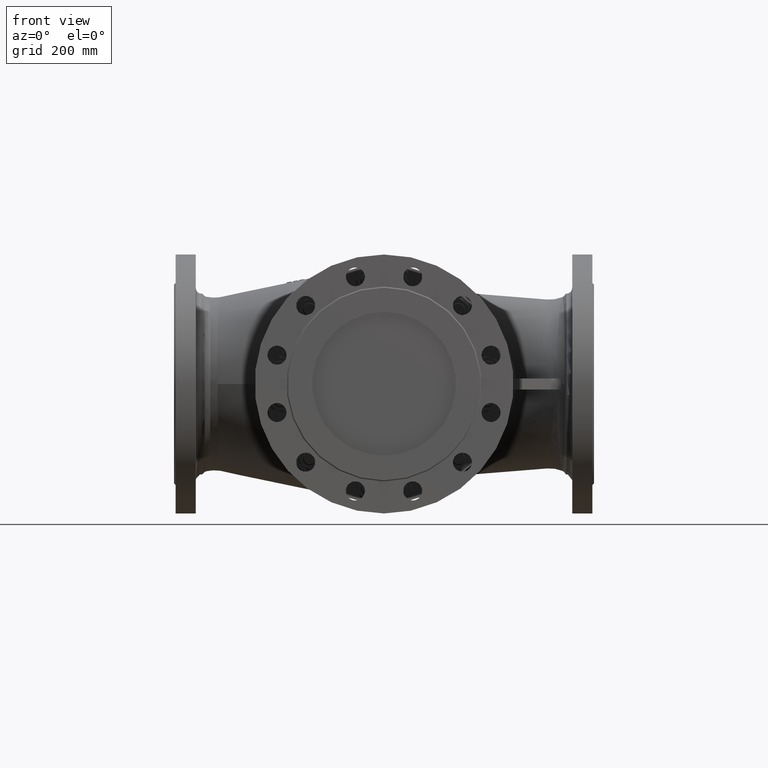
[diagram: clean part render]
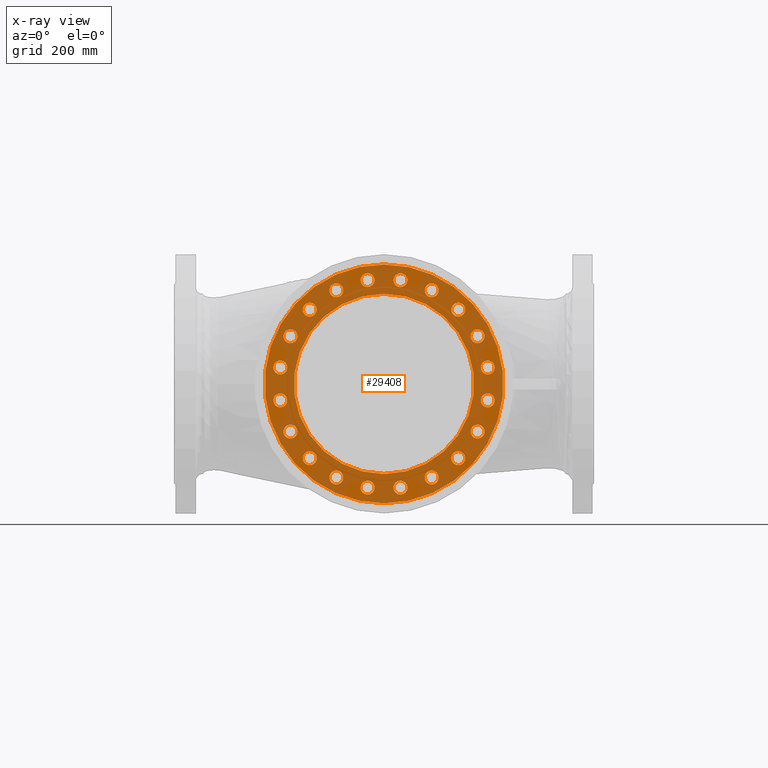
[diagram: x-ray — body ghosted, one internal face saturated and labeled with its STEP entity id]
A machine part, front view, then the same camera in x-ray: the body is ghosted and one INTERNAL B-rep face — a face not visible from any outside direction — is saturated and labeled: STEP entity #29408.
In plain terms, the highlighted planar face has unit normal (-0, -1, -0).
Its self-contained STEP definition (entity closure, byte-faithful):
#397 = EDGE_CURVE ( 'NONE', #156629, #113857, #68360, .T. ) ;
#1043 = DIRECTION ( 'NONE',  ( -2.775557561562891400E-017, -1.000000000000000000, -6.502944296374021100E-017 ) ) ;
#2102 = CARTESIAN_POINT ( 'NONE',  ( -7.757683384568281300E-015, -279.5000000000000000, 6.535622888726495100E-015 ) ) ;
#2305 = DIRECTION ( 'NONE',  ( -2.775557561562891400E-017, -1.000000000000000000, 2.338326614928978400E-017 ) ) ;
#2535 = CARTESIAN_POINT ( 'NONE',  ( -162.6086906643786000, -279.5000000000000000, 82.85326620246469500 ) ) ;
#2753 = DIRECTION ( 'NONE',  ( -2.775557561562891400E-017, -1.000000000000000000, 2.338326614928978400E-017 ) ) ;
#3127 = DIRECTION ( 'NONE',  ( 1.000000000000000000, 0.0000000000000000000, 0.0000000000000000000 ) ) ;
#3755 = DIRECTION ( 'NONE',  ( -1.461890767231333400E-017, 0.0000000000000000000, 1.000000000000000000 ) ) ;
#4243 = DIRECTION ( 'NONE',  ( -1.461890767231333400E-017, 0.0000000000000000000, 1.000000000000000000 ) ) ;
#6985 = CARTESIAN_POINT ( 'NONE',  ( 82.85326620246519300, -279.5000000000000000, 162.6086906643783400 ) ) ;
#7001 = CARTESIAN_POINT ( 'NONE',  ( -1.004700432605255000E-014, -279.5000000000000000, 156.6000000000000200 ) ) ;
#8294 = FACE_BOUND ( 'NONE', #297983, .T. ) ;
#9268 = EDGE_LOOP ( 'NONE', ( #79343, #42528 ) ) ;
#9668 = DIRECTION ( 'NONE',  ( -2.775557561562891400E-017, -1.000000000000000000, 2.338326614928978400E-017 ) ) ;
#10496 = EDGE_CURVE ( 'NONE', #169792, #268583, #316524, .T. ) ;
#11294 = CIRCLE ( 'NONE', #240017, 12.00000000000001100 ) ;
#11310 = CARTESIAN_POINT ( 'NONE',  ( -140.4596657620842000, -279.5000000000000000, -132.7551914990470700 ) ) ;
#12756 = DIRECTION ( 'NONE',  ( -2.775557561562891400E-017, -1.000000000000000000, 2.338326614928978400E-017 ) ) ;
#14125 = VERTEX_POINT ( 'NONE', #135424 ) ;
#15873 = CARTESIAN_POINT ( 'NONE',  ( -162.6086906643756700, -279.5000000000000000, -82.85326620247040800 ) ) ;
#16124 = FACE_BOUND ( 'NONE', #94922, .T. ) ;
#16415 = EDGE_CURVE ( 'NONE', #140521, #97298, #207724, .T. ) ;
#16742 = CARTESIAN_POINT ( 'NONE',  ( -129.0469875665471300, -279.5000000000000000, 129.0469875665429000 ) ) ;
#18573 = CARTESIAN_POINT ( 'NONE',  ( 92.56147013496453700, -279.5000000000000000, 169.6621136918880400 ) ) ;
#18870 = CARTESIAN_POINT ( 'NONE',  ( 82.85326620246519300, -279.5000000000000000, 162.6086906643783400 ) ) ;
#19573 = CARTESIAN_POINT ( 'NONE',  ( -28.54928986984477000, -279.5000000000000000, 180.2531221586123100 ) ) ;
#20358 = VERTEX_POINT ( 'NONE', #246117 ) ;
#22767 = ORIENTED_EDGE ( 'NONE', *, *, #191565, .F. ) ;
#23083 = AXIS2_PLACEMENT_3D ( 'NONE', #246803, #97893, #271749 ) ;
#23933 = FACE_BOUND ( 'NONE', #271853, .T. ) ;
#24568 = DIRECTION ( 'NONE',  ( 1.000000000000000000, 0.0000000000000000000, 0.0000000000000000000 ) ) ;
#26196 = EDGE_CURVE ( 'NONE', #113857, #156629, #133217, .T. ) ;
#27140 = AXIS2_PLACEMENT_3D ( 'NONE', #209268, #60312, #234262 ) ;
#27392 = ORIENTED_EDGE ( 'NONE', *, *, #257186, .F. ) ;
#27539 = DIRECTION ( 'NONE',  ( 1.000000000000000000, 0.0000000000000000000, 0.0000000000000000000 ) ) ;
#28574 = VERTEX_POINT ( 'NONE', #18573 ) ;
#28898 = DIRECTION ( 'NONE',  ( -2.775557561562891400E-017, -1.000000000000000000, 2.338326614928978400E-017 ) ) ;
#29408 = ADVANCED_FACE ( 'NONE', ( #171966, #164155, #39555, #105749, #31708, #288473, #222446, #156296, #90160, #23933, #280638, #214659, #148540, #82314, #16124, #272914, #206806, #140784, #74588, #8294, #265135, #199067 ), #150103, .T. ) ;
#29597 = CARTESIAN_POINT ( 'NONE',  ( -2.936153583948656700E-014, -279.5000000000000000, -207.5000000000000300 ) ) ;
#29845 = VERTEX_POINT ( 'NONE', #104358 ) ;
#31708 = FACE_BOUND ( 'NONE', #153314, .T. ) ;
#31957 = AXIS2_PLACEMENT_3D ( 'NONE', #74049, #247968, #99068 ) ;
#31978 = DIRECTION ( 'NONE',  ( 1.000000000000000000, 0.0000000000000000000, 0.0000000000000000000 ) ) ;
#36863 = VERTEX_POINT ( 'NONE', #141770 ) ;
#38667 = AXIS2_PLACEMENT_3D ( 'NONE', #178000, #28898, #202959 ) ;
#38865 = ORIENTED_EDGE ( 'NONE', *, *, #244096, .F. ) ;
#39469 = EDGE_CURVE ( 'NONE', #84758, #288530, #97750, .T. ) ;
#39555 = FACE_BOUND ( 'NONE', #101783, .T. ) ;
#40234 = AXIS2_PLACEMENT_3D ( 'NONE', #259120, #110236, #284078 ) ;
#40644 = CARTESIAN_POINT ( 'NONE',  ( -117.6343093710006300, -279.5000000000000000, -125.3387836340480400 ) ) ;
#40932 = DIRECTION ( 'NONE',  ( 1.000000000000000000, 0.0000000000000000000, 0.0000000000000000000 ) ) ;
#41794 = DIRECTION ( 'NONE',  ( 1.000000000000000000, 0.0000000000000000000, 0.0000000000000000000 ) ) ;
#42528 = ORIENTED_EDGE ( 'NONE', *, *, #26196, .F. ) ;
#43590 = CARTESIAN_POINT ( 'NONE',  ( -28.54928986984094100, -279.5000000000000000, -180.2531221586129400 ) ) ;
#43916 = DIRECTION ( 'NONE',  ( 1.000000000000000000, 0.0000000000000000000, 0.0000000000000000000 ) ) ;
#44608 = DIRECTION ( 'NONE',  ( 1.000000000000000000, 0.0000000000000000000, 0.0000000000000000000 ) ) ;
#45214 = ORIENTED_EDGE ( 'NONE', *, *, #222500, .F. ) ;
#45692 = CARTESIAN_POINT ( 'NONE',  ( -189.9613260911126800, -279.5000000000000000, 35.60271289734865300 ) ) ;
#45916 = VERTEX_POINT ( 'NONE', #275695 ) ;
#46087 = CARTESIAN_POINT ( 'NONE',  ( 28.54928986983966500, -279.5000000000000000, 180.2531221586131700 ) ) ;
#48987 = EDGE_LOOP ( 'NONE', ( #292650, #53025 ) ) ;
#49841 = EDGE_LOOP ( 'NONE', ( #92448, #168601 ) ) ;
#49842 = AXIS2_PLACEMENT_3D ( 'NONE', #161837, #12756, #186861 ) ;
#52655 = EDGE_LOOP ( 'NONE', ( #265597, #126885 ) ) ;
#53025 = ORIENTED_EDGE ( 'NONE', *, *, #115200, .F. ) ;
#53405 = CIRCLE ( 'NONE', #75999, 11.99999999999999600 ) ;
#53628 = AXIS2_PLACEMENT_3D ( 'NONE', #124303, #298104, #149302 ) ;
#55721 = EDGE_CURVE ( 'NONE', #61120, #193873, #104595, .T. ) ;
#57199 = VERTEX_POINT ( 'NONE', #155610 ) ;
#57790 = VERTEX_POINT ( 'NONE', #84847 ) ;
#58858 = CARTESIAN_POINT ( 'NONE',  ( -169.6621136918883500, -279.5000000000000000, 92.56147013496401100 ) ) ;
#59084 = CIRCLE ( 'NONE', #212531, 11.99999999999999600 ) ;
#60312 = DIRECTION ( 'NONE',  ( -2.775557561562891400E-017, -1.000000000000000000, 2.338326614928978400E-017 ) ) ;
#61120 = VERTEX_POINT ( 'NONE', #269223 ) ;
#61865 = VERTEX_POINT ( 'NONE', #106024 ) ;
#62979 = EDGE_CURVE ( 'NONE', #201974, #204483, #80863, .T. ) ;
#66659 = EDGE_CURVE ( 'NONE', #230853, #28574, #53405, .T. ) ;
#66852 = EDGE_CURVE ( 'NONE', #149313, #283194, #302256, .T. ) ;
#68360 = CIRCLE ( 'NONE', #126092, 156.6000000000000200 ) ;
#68659 = DIRECTION ( 'NONE',  ( 1.000000000000000000, 0.0000000000000000000, 0.0000000000000000000 ) ) ;
#69280 = AXIS2_PLACEMENT_3D ( 'NONE', #46087, #220069, #71146 ) ;
#69731 = DIRECTION ( 'NONE',  ( -2.775557561562891400E-017, -1.000000000000000000, 2.338326614928978400E-017 ) ) ;
#70039 = CARTESIAN_POINT ( 'NONE',  ( -82.85326620246986800, -279.5000000000000000, 162.6086906643759600 ) ) ;
#71136 = EDGE_CURVE ( 'NONE', #158098, #29845, #127084, .T. ) ;
#71146 = DIRECTION ( 'NONE',  ( 1.000000000000000000, 0.0000000000000000000, 0.0000000000000000000 ) ) ;
#71813 = CARTESIAN_POINT ( 'NONE',  ( 191.6658003541542400, -279.5000000000000000, 24.84108593734481500 ) ) ;
#72343 = CIRCLE ( 'NONE', #224544, 12.00000000000000000 ) ;
#73494 = EDGE_CURVE ( 'NONE', #84313, #61865, #196983, .T. ) ;
#74049 = CARTESIAN_POINT ( 'NONE',  ( 28.54928986984347400, -279.5000000000000000, -180.2531221586125100 ) ) ;
#74588 = FACE_BOUND ( 'NONE', #199567, .T. ) ;
#75279 = EDGE_LOOP ( 'NONE', ( #224028, #185159 ) ) ;
#75323 = ORIENTED_EDGE ( 'NONE', *, *, #227421, .F. ) ;
#75999 = AXIS2_PLACEMENT_3D ( 'NONE', #6985, #181070, #31978 ) ;
#76969 = CARTESIAN_POINT ( 'NONE',  ( -180.2531221586122600, -279.5000000000000000, -28.54928986984540300 ) ) ;
#79343 = ORIENTED_EDGE ( 'NONE', *, *, #397, .F. ) ;
#80863 = CIRCLE ( 'NONE', #155068, 12.00000000000001100 ) ;
#81030 = ORIENTED_EDGE ( 'NONE', *, *, #218242, .F. ) ;
#81429 = VERTEX_POINT ( 'NONE', #29597 ) ;
#81469 = CARTESIAN_POINT ( 'NONE',  ( -7.757683384568281300E-015, -279.5000000000000000, 6.535622888726495100E-015 ) ) ;
#81503 = ORIENTED_EDGE ( 'NONE', *, *, #308389, .F. ) ;
#82314 = FACE_BOUND ( 'NONE', #315743, .T. ) ;
#82493 = DIRECTION ( 'NONE',  ( -2.775557561562891400E-017, -1.000000000000000000, 2.338326614928978400E-017 ) ) ;
#82773 = CARTESIAN_POINT ( 'NONE',  ( -28.54928986984094100, -279.5000000000000000, -180.2531221586129400 ) ) ;
#82803 = EDGE_CURVE ( 'NONE', #268583, #169792, #316930, .T. ) ;
#83704 = CIRCLE ( 'NONE', #274394, 12.00000000000001100 ) ;
#83708 = CARTESIAN_POINT ( 'NONE',  ( -73.14506226996482500, -279.5000000000000000, -155.5552676368690200 ) ) ;
#83955 = CIRCLE ( 'NONE', #38667, 12.00000000000001100 ) ;
#84313 = VERTEX_POINT ( 'NONE', #158162 ) ;
#84758 = VERTEX_POINT ( 'NONE', #91874 ) ;
#84847 = CARTESIAN_POINT ( 'NONE',  ( -150.6086906643756400, -279.5000000000000000, -82.85326620247040800 ) ) ;
#85346 = DIRECTION ( 'NONE',  ( -2.775557561562891400E-017, -1.000000000000000000, 2.338326614928978400E-017 ) ) ;
#85487 = CIRCLE ( 'NONE', #233773, 12.00000000000001100 ) ;
#86977 = AXIS2_PLACEMENT_3D ( 'NONE', #253513, #104618, #278449 ) ;
#90160 = FACE_BOUND ( 'NONE', #197666, .T. ) ;
#91278 = AXIS2_PLACEMENT_3D ( 'NONE', #18870, #192940, #43916 ) ;
#91874 = CARTESIAN_POINT ( 'NONE',  ( -92.56147013496340000, -279.5000000000000000, -169.6621136918886400 ) ) ;
#92448 = ORIENTED_EDGE ( 'NONE', *, *, #82803, .F. ) ;
#93548 = CARTESIAN_POINT ( 'NONE',  ( 168.8404439630705600, -279.5000000000000000, 32.25749380234349700 ) ) ;
#94011 = EDGE_LOOP ( 'NONE', ( #101936, #316422 ) ) ;
#94922 = EDGE_LOOP ( 'NONE', ( #221345, #176923 ) ) ;
#94992 = ORIENTED_EDGE ( 'NONE', *, *, #55721, .F. ) ;
#95042 = DIRECTION ( 'NONE',  ( 1.000000000000000000, 0.0000000000000000000, 0.0000000000000000000 ) ) ;
#95156 = EDGE_CURVE ( 'NONE', #230246, #174065, #172240, .T. ) ;
#96524 = ORIENTED_EDGE ( 'NONE', *, *, #66852, .F. ) ;
#97298 = VERTEX_POINT ( 'NONE', #40644 ) ;
#97393 = CIRCLE ( 'NONE', #86977, 12.00000000000001100 ) ;
#97750 = CIRCLE ( 'NONE', #23083, 11.99999999999999600 ) ;
#97893 = DIRECTION ( 'NONE',  ( -2.775557561562891400E-017, -1.000000000000000000, 2.338326614928978400E-017 ) ) ;
#97903 = ORIENTED_EDGE ( 'NONE', *, *, #276473, .F. ) ;
#98206 = DIRECTION ( 'NONE',  ( -2.775557561562891400E-017, -1.000000000000000000, 2.338326614928978400E-017 ) ) ;
#98955 = AXIS2_PLACEMENT_3D ( 'NONE', #129639, #303427, #154628 ) ;
#98981 = EDGE_CURVE ( 'NONE', #150420, #286566, #292479, .T. ) ;
#99068 = DIRECTION ( 'NONE',  ( 1.000000000000000000, 0.0000000000000000000, 0.0000000000000000000 ) ) ;
#99189 = EDGE_CURVE ( 'NONE', #154066, #253337, #276888, .T. ) ;
#99385 = EDGE_LOOP ( 'NONE', ( #22767, #188708 ) ) ;
#99967 = CARTESIAN_POINT ( 'NONE',  ( -129.0469875665424100, -279.5000000000000000, -129.0469875665475600 ) ) ;
#100436 = CARTESIAN_POINT ( 'NONE',  ( -132.7551914990465900, -279.5000000000000000, 140.4596657620847100 ) ) ;
#101215 = ORIENTED_EDGE ( 'NONE', *, *, #290393, .F. ) ;
#101783 = EDGE_LOOP ( 'NONE', ( #319241, #246119 ) ) ;
#101936 = ORIENTED_EDGE ( 'NONE', *, *, #198983, .T. ) ;
#101967 = CARTESIAN_POINT ( 'NONE',  ( -82.85326620246986800, -279.5000000000000000, 162.6086906643759600 ) ) ;
#102000 = DIRECTION ( 'NONE',  ( 1.000000000000000000, 0.0000000000000000000, 0.0000000000000000000 ) ) ;
#103327 = ORIENTED_EDGE ( 'NONE', *, *, #226670, .F. ) ;
#104358 = CARTESIAN_POINT ( 'NONE',  ( -168.8404439630703800, -279.5000000000000000, -32.25749380234466200 ) ) ;
#104595 = CIRCLE ( 'NONE', #40234, 12.00000000000000400 ) ;
#104618 = DIRECTION ( 'NONE',  ( -2.775557561562891400E-017, -1.000000000000000000, 2.338326614928978400E-017 ) ) ;
#105749 = FACE_BOUND ( 'NONE', #48987, .T. ) ;
#106024 = CARTESIAN_POINT ( 'NONE',  ( -82.85326620246996800, -279.5000000000000000, 174.6086906643759600 ) ) ;
#106493 = DIRECTION ( 'NONE',  ( -1.461890767231333400E-017, 0.0000000000000000000, 1.000000000000000000 ) ) ;
#107511 = AXIS2_PLACEMENT_3D ( 'NONE', #123639, #297439, #148644 ) ;
#107803 = DIRECTION ( 'NONE',  ( 1.000000000000000000, 0.0000000000000000000, 0.0000000000000000000 ) ) ;
#107834 = CARTESIAN_POINT ( 'NONE',  ( 155.5552676368683100, -279.5000000000000000, -73.14506226996638800 ) ) ;
#107999 = CIRCLE ( 'NONE', #142656, 11.99999999999999600 ) ;
#108158 = CARTESIAN_POINT ( 'NONE',  ( 162.6086906643762400, -279.5000000000000000, 82.85326620246920000 ) ) ;
#108306 = CARTESIAN_POINT ( 'NONE',  ( -28.54928986984477000, -279.5000000000000000, 180.2531221586123100 ) ) ;
#109333 = CIRCLE ( 'NONE', #27140, 11.99999999999999600 ) ;
#110236 = DIRECTION ( 'NONE',  ( -2.775557561562891400E-017, -1.000000000000000000, 2.338326614928978400E-017 ) ) ;
#112068 = CIRCLE ( 'NONE', #31957, 12.00000000000000400 ) ;
#112522 = AXIS2_PLACEMENT_3D ( 'NONE', #291170, #142411, #316125 ) ;
#113857 = VERTEX_POINT ( 'NONE', #197598 ) ;
#114235 = ORIENTED_EDGE ( 'NONE', *, *, #16415, .F. ) ;
#114536 = ORIENTED_EDGE ( 'NONE', *, *, #120593, .F. ) ;
#115200 = EDGE_CURVE ( 'NONE', #204483, #201974, #140482, .T. ) ;
#120140 = EDGE_CURVE ( 'NONE', #126507, #308645, #237391, .T. ) ;
#120593 = EDGE_CURVE ( 'NONE', #248375, #223911, #97393, .T. ) ;
#121587 = CARTESIAN_POINT ( 'NONE',  ( 125.3387836340467300, -279.5000000000000000, -117.6343093710020000 ) ) ;
#122224 = DIRECTION ( 'NONE',  ( -2.775557561562891400E-017, -1.000000000000000000, 2.338326614928978400E-017 ) ) ;
#122684 = DIRECTION ( 'NONE',  ( -2.775557561562891400E-017, -1.000000000000000000, 2.338326614928978400E-017 ) ) ;
#122870 = DIRECTION ( 'NONE',  ( -2.775557561562891400E-017, -1.000000000000000000, 2.338326614928978400E-017 ) ) ;
#123639 = CARTESIAN_POINT ( 'NONE',  ( -180.2531221586132500, -279.5000000000000000, 28.54928986983906800 ) ) ;
#124303 = CARTESIAN_POINT ( 'NONE',  ( 82.85326620246863200, -279.5000000000000000, -162.6086906643765200 ) ) ;
#124429 = EDGE_CURVE ( 'NONE', #28574, #230853, #276034, .T. ) ;
#124963 = DIRECTION ( 'NONE',  ( 1.000000000000000000, 0.0000000000000000000, 0.0000000000000000000 ) ) ;
#125057 = CARTESIAN_POINT ( 'NONE',  ( 180.2531221586124000, -279.5000000000000000, 28.54928986984415200 ) ) ;
#126092 = AXIS2_PLACEMENT_3D ( 'NONE', #2102, #2753, #4243 ) ;
#126145 = DIRECTION ( 'NONE',  ( -2.775557561562891400E-017, -1.000000000000000000, 2.338326614928978400E-017 ) ) ;
#126158 = VERTEX_POINT ( 'NONE', #107834 ) ;
#126452 = AXIS2_PLACEMENT_3D ( 'NONE', #158746, #9668, #183770 ) ;
#126507 = VERTEX_POINT ( 'NONE', #258850 ) ;
#126587 = EDGE_LOOP ( 'NONE', ( #45214, #293188 ) ) ;
#126885 = ORIENTED_EDGE ( 'NONE', *, *, #261766, .F. ) ;
#126962 = DIRECTION ( 'NONE',  ( 1.000000000000000000, 0.0000000000000000000, 0.0000000000000000000 ) ) ;
#127084 = CIRCLE ( 'NONE', #246961, 12.00000000000001100 ) ;
#127459 = AXIS2_PLACEMENT_3D ( 'NONE', #271064, #122224, #296014 ) ;
#127620 = CARTESIAN_POINT ( 'NONE',  ( 162.6086906643780000, -279.5000000000000000, -82.85326620246574700 ) ) ;
#127983 = AXIS2_PLACEMENT_3D ( 'NONE', #322399, #173676, #24568 ) ;
#129639 = CARTESIAN_POINT ( 'NONE',  ( 180.2531221586130000, -279.5000000000000000, -28.54928986984031500 ) ) ;
#133010 = AXIS2_PLACEMENT_3D ( 'NONE', #19573, #193636, #44608 ) ;
#133184 = DIRECTION ( 'NONE',  ( 1.000000000000000000, 0.0000000000000000000, 0.0000000000000000000 ) ) ;
#133217 = CIRCLE ( 'NONE', #49842, 156.6000000000000200 ) ;
#133329 = DIRECTION ( 'NONE',  ( 1.000000000000000000, 0.0000000000000000000, 0.0000000000000000000 ) ) ;
#134525 = CIRCLE ( 'NONE', #127459, 11.99999999999999600 ) ;
#135424 = CARTESIAN_POINT ( 'NONE',  ( -24.84108593734547900, -279.5000000000000000, 191.6658003541541900 ) ) ;
#137871 = AXIS2_PLACEMENT_3D ( 'NONE', #76969, #250892, #102000 ) ;
#140482 = CIRCLE ( 'NONE', #205566, 12.00000000000001100 ) ;
#140521 = VERTEX_POINT ( 'NONE', #11310 ) ;
#140784 = FACE_BOUND ( 'NONE', #197976, .T. ) ;
#140828 = CARTESIAN_POINT ( 'NONE',  ( -32.25749380234406500, -279.5000000000000000, 168.8404439630704400 ) ) ;
#141770 = CARTESIAN_POINT ( 'NONE',  ( -174.6086906643756700, -279.5000000000000000, -82.85326620247055000 ) ) ;
#142411 = DIRECTION ( 'NONE',  ( -2.775557561562891400E-017, -1.000000000000000000, 2.338326614928978400E-017 ) ) ;
#142656 = AXIS2_PLACEMENT_3D ( 'NONE', #218657, #69731, #243638 ) ;
#142766 = AXIS2_PLACEMENT_3D ( 'NONE', #108158, #281990, #133184 ) ;
#148178 = DIRECTION ( 'NONE',  ( -2.775557561562891400E-017, -1.000000000000000000, 2.338326614928978400E-017 ) ) ;
#148540 = FACE_BOUND ( 'NONE', #49841, .T. ) ;
#148644 = DIRECTION ( 'NONE',  ( 1.000000000000000000, 0.0000000000000000000, 0.0000000000000000000 ) ) ;
#148956 = AXIS2_PLACEMENT_3D ( 'NONE', #82773, #256683, #107803 ) ;
#148976 = CARTESIAN_POINT ( 'NONE',  ( 73.14506226996584800, -279.5000000000000000, 155.5552676368686200 ) ) ;
#149302 = DIRECTION ( 'NONE',  ( 1.000000000000000000, 0.0000000000000000000, 0.0000000000000000000 ) ) ;
#149313 = VERTEX_POINT ( 'NONE', #223660 ) ;
#150062 = DIRECTION ( 'NONE',  ( 1.000000000000000000, 0.0000000000000000000, 0.0000000000000000000 ) ) ;
#150103 = PLANE ( 'NONE',  #310194 ) ;
#150420 = VERTEX_POINT ( 'NONE', #283160 ) ;
#151374 = CARTESIAN_POINT ( 'NONE',  ( 129.0469875665461100, -279.5000000000000000, -129.0469875665438300 ) ) ;
#151559 = EDGE_CURVE ( 'NONE', #191145, #57199, #134525, .T. ) ;
#152207 = DIRECTION ( 'NONE',  ( -2.775557561562891400E-017, -1.000000000000000000, 2.338326614928978400E-017 ) ) ;
#152639 = DIRECTION ( 'NONE',  ( 1.000000000000000000, 0.0000000000000000000, 0.0000000000000000000 ) ) ;
#152836 = DIRECTION ( 'NONE',  ( -2.775557561562891400E-017, -1.000000000000000000, 2.338326614928978400E-017 ) ) ;
#153314 = EDGE_LOOP ( 'NONE', ( #318869, #101215 ) ) ;
#154066 = VERTEX_POINT ( 'NONE', #236772 ) ;
#154628 = DIRECTION ( 'NONE',  ( 1.000000000000000000, 0.0000000000000000000, 0.0000000000000000000 ) ) ;
#155036 = CARTESIAN_POINT ( 'NONE',  ( -170.5449182261138200, -279.5000000000000000, 21.49586684232948000 ) ) ;
#155068 = AXIS2_PLACEMENT_3D ( 'NONE', #247106, #98206, #272052 ) ;
#155610 = CARTESIAN_POINT ( 'NONE',  ( 35.60271289734928500, -279.5000000000000000, 189.9613260911125700 ) ) ;
#156296 = FACE_BOUND ( 'NONE', #99385, .T. ) ;
#156629 = VERTEX_POINT ( 'NONE', #7001 ) ;
#158098 = VERTEX_POINT ( 'NONE', #175527 ) ;
#158162 = CARTESIAN_POINT ( 'NONE',  ( -82.85326620246978300, -279.5000000000000000, 150.6086906643759300 ) ) ;
#158746 = CARTESIAN_POINT ( 'NONE',  ( -162.6086906643756700, -279.5000000000000000, -82.85326620247040800 ) ) ;
#159647 = CIRCLE ( 'NONE', #196522, 11.99999999999999600 ) ;
#159690 = AXIS2_PLACEMENT_3D ( 'NONE', #271727, #122870, #296671 ) ;
#159885 = AXIS2_PLACEMENT_3D ( 'NONE', #99967, #273835, #124963 ) ;
#160621 = EDGE_LOOP ( 'NONE', ( #213013, #247705 ) ) ;
#161119 = EDGE_CURVE ( 'NONE', #45916, #228216, #159647, .T. ) ;
#161837 = CARTESIAN_POINT ( 'NONE',  ( -7.757683384568281300E-015, -279.5000000000000000, 6.535622888726495100E-015 ) ) ;
#164155 = FACE_BOUND ( 'NONE', #202555, .T. ) ;
#165137 = CARTESIAN_POINT ( 'NONE',  ( 169.6621136918877000, -279.5000000000000000, -92.56147013496510600 ) ) ;
#165200 = AXIS2_PLACEMENT_3D ( 'NONE', #300990, #152207, #3127 ) ;
#165264 = EDGE_CURVE ( 'NONE', #81429, #233041, #256592, .T. ) ;
#166134 = CARTESIAN_POINT ( 'NONE',  ( 140.4596657620851900, -279.5000000000000000, 132.7551914990459900 ) ) ;
#168601 = ORIENTED_EDGE ( 'NONE', *, *, #10496, .F. ) ;
#169022 = CIRCLE ( 'NONE', #133010, 12.00000000000000000 ) ;
#169792 = VERTEX_POINT ( 'NONE', #71813 ) ;
#171966 = FACE_BOUND ( 'NONE', #75279, .T. ) ;
#172240 = CIRCLE ( 'NONE', #127983, 12.00000000000001100 ) ;
#172711 = CARTESIAN_POINT ( 'NONE',  ( -1.079110672657330000E-014, -279.5000000000000000, 207.5000000000000900 ) ) ;
#173327 = CIRCLE ( 'NONE', #159690, 11.99999999999999600 ) ;
#173676 = DIRECTION ( 'NONE',  ( -2.775557561562891400E-017, -1.000000000000000000, 2.338326614928978400E-017 ) ) ;
#173847 = EDGE_CURVE ( 'NONE', #174065, #230246, #213326, .T. ) ;
#174065 = VERTEX_POINT ( 'NONE', #155036 ) ;
#175153 = DIRECTION ( 'NONE',  ( -1.461890767231333100E-017, -6.502944296374021100E-017, 1.000000000000000000 ) ) ;
#175527 = CARTESIAN_POINT ( 'NONE',  ( -191.6658003541541300, -279.5000000000000000, -24.84108593734614300 ) ) ;
#175685 = CIRCLE ( 'NONE', #137871, 12.00000000000001100 ) ;
#176422 = DIRECTION ( 'NONE',  ( 1.000000000000000000, 0.0000000000000000000, 0.0000000000000000000 ) ) ;
#176654 = DIRECTION ( 'NONE',  ( -2.775557561562891400E-017, -1.000000000000000000, 2.338326614928978400E-017 ) ) ;
#176923 = ORIENTED_EDGE ( 'NONE', *, *, #95156, .F. ) ;
#178000 = CARTESIAN_POINT ( 'NONE',  ( 180.2531221586130000, -279.5000000000000000, -28.54928986984031500 ) ) ;
#181070 = DIRECTION ( 'NONE',  ( -2.775557561562891400E-017, -1.000000000000000000, 2.338326614928978400E-017 ) ) ;
#181532 = CIRCLE ( 'NONE', #203604, 11.99999999999999600 ) ;
#183770 = DIRECTION ( 'NONE',  ( 1.000000000000000000, 0.0000000000000000000, 0.0000000000000000000 ) ) ;
#184017 = CARTESIAN_POINT ( 'NONE',  ( 21.49586684233004200, -279.5000000000000000, 170.5449182261137700 ) ) ;
#184802 = CARTESIAN_POINT ( 'NONE',  ( 150.6086906643762400, -279.5000000000000000, 82.85326620246915800 ) ) ;
#185159 = ORIENTED_EDGE ( 'NONE', *, *, #124429, .F. ) ;
#185248 = EDGE_CURVE ( 'NONE', #36863, #57790, #294332, .T. ) ;
#186834 = EDGE_CURVE ( 'NONE', #288530, #84758, #181532, .T. ) ;
#186861 = DIRECTION ( 'NONE',  ( -1.461890767231333400E-017, 0.0000000000000000000, 1.000000000000000000 ) ) ;
#187589 = CIRCLE ( 'NONE', #69280, 11.99999999999999600 ) ;
#188433 = CIRCLE ( 'NONE', #276804, 12.00000000000000000 ) ;
#188556 = AXIS2_PLACEMENT_3D ( 'NONE', #301617, #152836, #3755 ) ;
#188708 = ORIENTED_EDGE ( 'NONE', *, *, #99189, .F. ) ;
#189979 = DIRECTION ( 'NONE',  ( -2.775557561562891400E-017, -1.000000000000000000, 2.338326614928978400E-017 ) ) ;
#190823 = DIRECTION ( 'NONE',  ( -2.775557561562891400E-017, -1.000000000000000000, 2.338326614928978400E-017 ) ) ;
#191145 = VERTEX_POINT ( 'NONE', #184017 ) ;
#191415 = EDGE_LOOP ( 'NONE', ( #97903, #312374 ) ) ;
#191565 = EDGE_CURVE ( 'NONE', #253337, #154066, #72343, .T. ) ;
#192940 = DIRECTION ( 'NONE',  ( -2.775557561562891400E-017, -1.000000000000000000, 2.338326614928978400E-017 ) ) ;
#193636 = DIRECTION ( 'NONE',  ( -2.775557561562891400E-017, -1.000000000000000000, 2.338326614928978400E-017 ) ) ;
#193873 = VERTEX_POINT ( 'NONE', #283495 ) ;
#195012 = ORIENTED_EDGE ( 'NONE', *, *, #185248, .F. ) ;
#195685 = CARTESIAN_POINT ( 'NONE',  ( -21.49586684233125000, -279.5000000000000000, -170.5449182261135900 ) ) ;
#196522 = AXIS2_PLACEMENT_3D ( 'NONE', #16742, #190823, #41794 ) ;
#196911 = CARTESIAN_POINT ( 'NONE',  ( 140.4999999999999700, -279.5000000000000000, 1.043528126272235600E-014 ) ) ;
#196983 = CIRCLE ( 'NONE', #312644, 11.99999999999999600 ) ;
#197598 = CARTESIAN_POINT ( 'NONE',  ( -2.457694237869249400E-014, -279.5000000000000000, -156.5999999999999900 ) ) ;
#197666 = EDGE_LOOP ( 'NONE', ( #94992, #237580 ) ) ;
#197976 = EDGE_LOOP ( 'NONE', ( #114536, #311543 ) ) ;
#198983 = EDGE_CURVE ( 'NONE', #233041, #81429, #231399, .T. ) ;
#199067 = FACE_OUTER_BOUND ( 'NONE', #94011, .T. ) ;
#199567 = EDGE_LOOP ( 'NONE', ( #103327, #96524 ) ) ;
#201783 = CARTESIAN_POINT ( 'NONE',  ( 117.6343093710015400, -279.5000000000000000, 125.3387836340471600 ) ) ;
#201974 = VERTEX_POINT ( 'NONE', #121587 ) ;
#202555 = EDGE_LOOP ( 'NONE', ( #81503, #195012 ) ) ;
#202825 = EDGE_CURVE ( 'NONE', #14125, #273784, #188433, .T. ) ;
#202959 = DIRECTION ( 'NONE',  ( 1.000000000000000000, 0.0000000000000000000, 0.0000000000000000000 ) ) ;
#203085 = CIRCLE ( 'NONE', #250196, 12.00000000000001100 ) ;
#203604 = AXIS2_PLACEMENT_3D ( 'NONE', #271537, #122684, #296485 ) ;
#203772 = EDGE_LOOP ( 'NONE', ( #38865, #114235 ) ) ;
#204483 = VERTEX_POINT ( 'NONE', #291813 ) ;
#205566 = AXIS2_PLACEMENT_3D ( 'NONE', #151374, #2305, #176422 ) ;
#206806 = FACE_BOUND ( 'NONE', #160621, .T. ) ;
#207724 = CIRCLE ( 'NONE', #159885, 11.99999999999999600 ) ;
#208741 = AXIS2_PLACEMENT_3D ( 'NONE', #296979, #148178, #321956 ) ;
#208981 = CARTESIAN_POINT ( 'NONE',  ( 170.5449182261136200, -279.5000000000000000, -21.49586684233066000 ) ) ;
#209268 = CARTESIAN_POINT ( 'NONE',  ( 82.85326620246863200, -279.5000000000000000, -162.6086906643765200 ) ) ;
#212531 = AXIS2_PLACEMENT_3D ( 'NONE', #101967, #275817, #126962 ) ;
#213013 = ORIENTED_EDGE ( 'NONE', *, *, #120140, .F. ) ;
#213326 = CIRCLE ( 'NONE', #107511, 12.00000000000001100 ) ;
#214659 = FACE_BOUND ( 'NONE', #214716, .T. ) ;
#214716 = EDGE_LOOP ( 'NONE', ( #27392, #285105 ) ) ;
#217604 = DIRECTION ( 'NONE',  ( -2.775557561562891400E-017, -1.000000000000000000, 2.338326614928978400E-017 ) ) ;
#218242 = EDGE_CURVE ( 'NONE', #126158, #270312, #203085, .T. ) ;
#218657 = CARTESIAN_POINT ( 'NONE',  ( -129.0469875665424100, -279.5000000000000000, -129.0469875665475600 ) ) ;
#219456 = EDGE_CURVE ( 'NONE', #20358, #298567, #245811, .T. ) ;
#220069 = DIRECTION ( 'NONE',  ( -2.775557561562891400E-017, -1.000000000000000000, 2.338326614928978400E-017 ) ) ;
#221345 = ORIENTED_EDGE ( 'NONE', *, *, #173847, .F. ) ;
#222446 = FACE_BOUND ( 'NONE', #203772, .T. ) ;
#222500 = EDGE_CURVE ( 'NONE', #29845, #158098, #175685, .T. ) ;
#223660 = CARTESIAN_POINT ( 'NONE',  ( 174.6086906643762700, -279.5000000000000000, 82.85326620246924300 ) ) ;
#223911 = VERTEX_POINT ( 'NONE', #166134 ) ;
#224028 = ORIENTED_EDGE ( 'NONE', *, *, #66659, .F. ) ;
#224544 = AXIS2_PLACEMENT_3D ( 'NONE', #43590, #217604, #68659 ) ;
#226670 = EDGE_CURVE ( 'NONE', #283194, #149313, #280310, .T. ) ;
#227421 = EDGE_CURVE ( 'NONE', #57199, #191145, #187589, .T. ) ;
#228216 = VERTEX_POINT ( 'NONE', #100436 ) ;
#230246 = VERTEX_POINT ( 'NONE', #45692 ) ;
#230853 = VERTEX_POINT ( 'NONE', #148976 ) ;
#231399 = CIRCLE ( 'NONE', #322488, 207.5000000000000900 ) ;
#231443 = CARTESIAN_POINT ( 'NONE',  ( -180.2531221586122600, -279.5000000000000000, -28.54928986984540300 ) ) ;
#233041 = VERTEX_POINT ( 'NONE', #172711 ) ;
#233773 = AXIS2_PLACEMENT_3D ( 'NONE', #234282, #85346, #259238 ) ;
#234262 = DIRECTION ( 'NONE',  ( 1.000000000000000000, 0.0000000000000000000, 0.0000000000000000000 ) ) ;
#234282 = CARTESIAN_POINT ( 'NONE',  ( -162.6086906643786000, -279.5000000000000000, 82.85326620246469500 ) ) ;
#235031 = ORIENTED_EDGE ( 'NONE', *, *, #151559, .F. ) ;
#236772 = CARTESIAN_POINT ( 'NONE',  ( -35.60271289735063500, -279.5000000000000000, -189.9613260911123100 ) ) ;
#237391 = CIRCLE ( 'NONE', #53628, 11.99999999999999600 ) ;
#237580 = ORIENTED_EDGE ( 'NONE', *, *, #241088, .F. ) ;
#240017 = AXIS2_PLACEMENT_3D ( 'NONE', #15873, #189979, #40932 ) ;
#241088 = EDGE_CURVE ( 'NONE', #193873, #61120, #112068, .T. ) ;
#243638 = DIRECTION ( 'NONE',  ( 1.000000000000000000, 0.0000000000000000000, 0.0000000000000000000 ) ) ;
#243952 = DIRECTION ( 'NONE',  ( -2.775557561562891400E-017, -1.000000000000000000, 2.338326614928978400E-017 ) ) ;
#244096 = EDGE_CURVE ( 'NONE', #97298, #140521, #107999, .T. ) ;
#245414 = CARTESIAN_POINT ( 'NONE',  ( 82.85326620246863200, -279.5000000000000000, -174.6086906643765200 ) ) ;
#245811 = CIRCLE ( 'NONE', #300094, 12.00000000000001100 ) ;
#246117 = CARTESIAN_POINT ( 'NONE',  ( -155.5552676368688500, -279.5000000000000000, 73.14506226996537900 ) ) ;
#246119 = ORIENTED_EDGE ( 'NONE', *, *, #310422, .F. ) ;
#246803 = CARTESIAN_POINT ( 'NONE',  ( -82.85326620246411300, -279.5000000000000000, -162.6086906643788300 ) ) ;
#246961 = AXIS2_PLACEMENT_3D ( 'NONE', #231443, #82493, #256403 ) ;
#247106 = CARTESIAN_POINT ( 'NONE',  ( 129.0469875665461100, -279.5000000000000000, -129.0469875665438300 ) ) ;
#247705 = ORIENTED_EDGE ( 'NONE', *, *, #295685, .F. ) ;
#247968 = DIRECTION ( 'NONE',  ( -2.775557561562891400E-017, -1.000000000000000000, 2.338326614928978400E-017 ) ) ;
#248375 = VERTEX_POINT ( 'NONE', #201783 ) ;
#250196 = AXIS2_PLACEMENT_3D ( 'NONE', #127620, #301418, #152639 ) ;
#250892 = DIRECTION ( 'NONE',  ( -2.775557561562891400E-017, -1.000000000000000000, 2.338326614928978400E-017 ) ) ;
#253337 = VERTEX_POINT ( 'NONE', #195685 ) ;
#253513 = CARTESIAN_POINT ( 'NONE',  ( 129.0469875665433800, -279.5000000000000000, 129.0469875665465600 ) ) ;
#253754 = ORIENTED_EDGE ( 'NONE', *, *, #39469, .F. ) ;
#254245 = ORIENTED_EDGE ( 'NONE', *, *, #186834, .F. ) ;
#255388 = DIRECTION ( 'NONE',  ( -2.775557561562891400E-017, -1.000000000000000000, 2.338326614928978400E-017 ) ) ;
#256403 = DIRECTION ( 'NONE',  ( 1.000000000000000000, 0.0000000000000000000, 0.0000000000000000000 ) ) ;
#256592 = CIRCLE ( 'NONE', #188556, 207.5000000000000900 ) ;
#256683 = DIRECTION ( 'NONE',  ( -2.775557561562891400E-017, -1.000000000000000000, 2.338326614928978400E-017 ) ) ;
#257186 = EDGE_CURVE ( 'NONE', #286566, #150420, #83955, .T. ) ;
#258850 = CARTESIAN_POINT ( 'NONE',  ( 82.85326620246863200, -279.5000000000000000, -150.6086906643765200 ) ) ;
#259120 = CARTESIAN_POINT ( 'NONE',  ( 28.54928986984347400, -279.5000000000000000, -180.2531221586125100 ) ) ;
#259238 = DIRECTION ( 'NONE',  ( 1.000000000000000000, 0.0000000000000000000, 0.0000000000000000000 ) ) ;
#261259 = ORIENTED_EDGE ( 'NONE', *, *, #289901, .F. ) ;
#261766 = EDGE_CURVE ( 'NONE', #228216, #45916, #173327, .T. ) ;
#265135 = FACE_BOUND ( 'NONE', #9268, .T. ) ;
#265305 = CIRCLE ( 'NONE', #112522, 12.00000000000001100 ) ;
#265597 = ORIENTED_EDGE ( 'NONE', *, *, #161119, .F. ) ;
#267940 = AXIS2_PLACEMENT_3D ( 'NONE', #125057, #298869, #150062 ) ;
#268583 = VERTEX_POINT ( 'NONE', #93548 ) ;
#268678 = EDGE_CURVE ( 'NONE', #223911, #248375, #83704, .T. ) ;
#269223 = CARTESIAN_POINT ( 'NONE',  ( 32.25749380234285000, -279.5000000000000000, -168.8404439630706700 ) ) ;
#270312 = VERTEX_POINT ( 'NONE', #165137 ) ;
#271064 = CARTESIAN_POINT ( 'NONE',  ( 28.54928986983966500, -279.5000000000000000, 180.2531221586131700 ) ) ;
#271537 = CARTESIAN_POINT ( 'NONE',  ( -82.85326620246411300, -279.5000000000000000, -162.6086906643788300 ) ) ;
#271727 = CARTESIAN_POINT ( 'NONE',  ( -129.0469875665471300, -279.5000000000000000, 129.0469875665429000 ) ) ;
#271749 = DIRECTION ( 'NONE',  ( 1.000000000000000000, 0.0000000000000000000, 0.0000000000000000000 ) ) ;
#271853 = EDGE_LOOP ( 'NONE', ( #81030, #261259 ) ) ;
#272052 = DIRECTION ( 'NONE',  ( 1.000000000000000000, 0.0000000000000000000, 0.0000000000000000000 ) ) ;
#272914 = FACE_BOUND ( 'NONE', #191415, .T. ) ;
#273784 = VERTEX_POINT ( 'NONE', #140828 ) ;
#273835 = DIRECTION ( 'NONE',  ( -2.775557561562891400E-017, -1.000000000000000000, 2.338326614928978400E-017 ) ) ;
#274394 = AXIS2_PLACEMENT_3D ( 'NONE', #275010, #126145, #299949 ) ;
#275010 = CARTESIAN_POINT ( 'NONE',  ( 129.0469875665433800, -279.5000000000000000, 129.0469875665465600 ) ) ;
#275695 = CARTESIAN_POINT ( 'NONE',  ( -125.3387836340476600, -279.5000000000000000, 117.6343093710010800 ) ) ;
#275817 = DIRECTION ( 'NONE',  ( -2.775557561562891400E-017, -1.000000000000000000, 2.338326614928978400E-017 ) ) ;
#276034 = CIRCLE ( 'NONE', #91278, 11.99999999999999600 ) ;
#276473 = EDGE_CURVE ( 'NONE', #273784, #14125, #169022, .T. ) ;
#276804 = AXIS2_PLACEMENT_3D ( 'NONE', #108306, #282137, #133329 ) ;
#276888 = CIRCLE ( 'NONE', #148956, 12.00000000000000000 ) ;
#278449 = DIRECTION ( 'NONE',  ( 1.000000000000000000, 0.0000000000000000000, 0.0000000000000000000 ) ) ;
#280310 = CIRCLE ( 'NONE', #208741, 12.00000000000001100 ) ;
#280638 = FACE_BOUND ( 'NONE', #126587, .T. ) ;
#281990 = DIRECTION ( 'NONE',  ( -2.775557561562891400E-017, -1.000000000000000000, 2.338326614928978400E-017 ) ) ;
#282137 = DIRECTION ( 'NONE',  ( -2.775557561562891400E-017, -1.000000000000000000, 2.338326614928978400E-017 ) ) ;
#283160 = CARTESIAN_POINT ( 'NONE',  ( 189.9613260911123700, -279.5000000000000000, -35.60271289734997400 ) ) ;
#283194 = VERTEX_POINT ( 'NONE', #184802 ) ;
#283495 = CARTESIAN_POINT ( 'NONE',  ( 24.84108593734409700, -279.5000000000000000, -191.6658003541543300 ) ) ;
#284078 = DIRECTION ( 'NONE',  ( 1.000000000000000000, 0.0000000000000000000, 0.0000000000000000000 ) ) ;
#285105 = ORIENTED_EDGE ( 'NONE', *, *, #98981, .F. ) ;
#286566 = VERTEX_POINT ( 'NONE', #208981 ) ;
#288473 = FACE_BOUND ( 'NONE', #52655, .T. ) ;
#288530 = VERTEX_POINT ( 'NONE', #83708 ) ;
#289901 = EDGE_CURVE ( 'NONE', #270312, #126158, #265305, .T. ) ;
#290393 = EDGE_CURVE ( 'NONE', #61865, #84313, #59084, .T. ) ;
#291170 = CARTESIAN_POINT ( 'NONE',  ( 162.6086906643780000, -279.5000000000000000, -82.85326620246574700 ) ) ;
#291813 = CARTESIAN_POINT ( 'NONE',  ( 132.7551914990454800, -279.5000000000000000, -140.4596657620856800 ) ) ;
#292479 = CIRCLE ( 'NONE', #98955, 12.00000000000001100 ) ;
#292650 = ORIENTED_EDGE ( 'NONE', *, *, #62979, .F. ) ;
#293188 = ORIENTED_EDGE ( 'NONE', *, *, #71136, .F. ) ;
#294332 = CIRCLE ( 'NONE', #126452, 12.00000000000001100 ) ;
#295685 = EDGE_CURVE ( 'NONE', #308645, #126507, #109333, .T. ) ;
#296014 = DIRECTION ( 'NONE',  ( 1.000000000000000000, 0.0000000000000000000, 0.0000000000000000000 ) ) ;
#296485 = DIRECTION ( 'NONE',  ( 1.000000000000000000, 0.0000000000000000000, 0.0000000000000000000 ) ) ;
#296671 = DIRECTION ( 'NONE',  ( 1.000000000000000000, 0.0000000000000000000, 0.0000000000000000000 ) ) ;
#296979 = CARTESIAN_POINT ( 'NONE',  ( 162.6086906643762400, -279.5000000000000000, 82.85326620246920000 ) ) ;
#297439 = DIRECTION ( 'NONE',  ( -2.775557561562891400E-017, -1.000000000000000000, 2.338326614928978400E-017 ) ) ;
#297983 = EDGE_LOOP ( 'NONE', ( #254245, #253754 ) ) ;
#298104 = DIRECTION ( 'NONE',  ( -2.775557561562891400E-017, -1.000000000000000000, 2.338326614928978400E-017 ) ) ;
#298567 = VERTEX_POINT ( 'NONE', #58858 ) ;
#298869 = DIRECTION ( 'NONE',  ( -2.775557561562891400E-017, -1.000000000000000000, 2.338326614928978400E-017 ) ) ;
#299949 = DIRECTION ( 'NONE',  ( 1.000000000000000000, 0.0000000000000000000, 0.0000000000000000000 ) ) ;
#300094 = AXIS2_PLACEMENT_3D ( 'NONE', #2535, #176654, #27539 ) ;
#300990 = CARTESIAN_POINT ( 'NONE',  ( 180.2531221586124000, -279.5000000000000000, 28.54928986984415200 ) ) ;
#301418 = DIRECTION ( 'NONE',  ( -2.775557561562891400E-017, -1.000000000000000000, 2.338326614928978400E-017 ) ) ;
#301617 = CARTESIAN_POINT ( 'NONE',  ( -7.757683384568281300E-015, -279.5000000000000000, 6.535622888726495100E-015 ) ) ;
#302256 = CIRCLE ( 'NONE', #142766, 12.00000000000001100 ) ;
#303427 = DIRECTION ( 'NONE',  ( -2.775557561562891400E-017, -1.000000000000000000, 2.338326614928978400E-017 ) ) ;
#308389 = EDGE_CURVE ( 'NONE', #57790, #36863, #11294, .T. ) ;
#308645 = VERTEX_POINT ( 'NONE', #245414 ) ;
#310194 = AXIS2_PLACEMENT_3D ( 'NONE', #196911, #1043, #175153 ) ;
#310422 = EDGE_CURVE ( 'NONE', #298567, #20358, #85487, .T. ) ;
#311543 = ORIENTED_EDGE ( 'NONE', *, *, #268678, .F. ) ;
#312374 = ORIENTED_EDGE ( 'NONE', *, *, #202825, .F. ) ;
#312644 = AXIS2_PLACEMENT_3D ( 'NONE', #70039, #243952, #95042 ) ;
#315743 = EDGE_LOOP ( 'NONE', ( #235031, #75323 ) ) ;
#316125 = DIRECTION ( 'NONE',  ( 1.000000000000000000, 0.0000000000000000000, 0.0000000000000000000 ) ) ;
#316422 = ORIENTED_EDGE ( 'NONE', *, *, #165264, .T. ) ;
#316524 = CIRCLE ( 'NONE', #267940, 12.00000000000001100 ) ;
#316930 = CIRCLE ( 'NONE', #165200, 12.00000000000001100 ) ;
#318869 = ORIENTED_EDGE ( 'NONE', *, *, #73494, .F. ) ;
#319241 = ORIENTED_EDGE ( 'NONE', *, *, #219456, .F. ) ;
#321956 = DIRECTION ( 'NONE',  ( 1.000000000000000000, 0.0000000000000000000, 0.0000000000000000000 ) ) ;
#322399 = CARTESIAN_POINT ( 'NONE',  ( -180.2531221586132500, -279.5000000000000000, 28.54928986983906800 ) ) ;
#322488 = AXIS2_PLACEMENT_3D ( 'NONE', #81469, #255388, #106493 ) ;